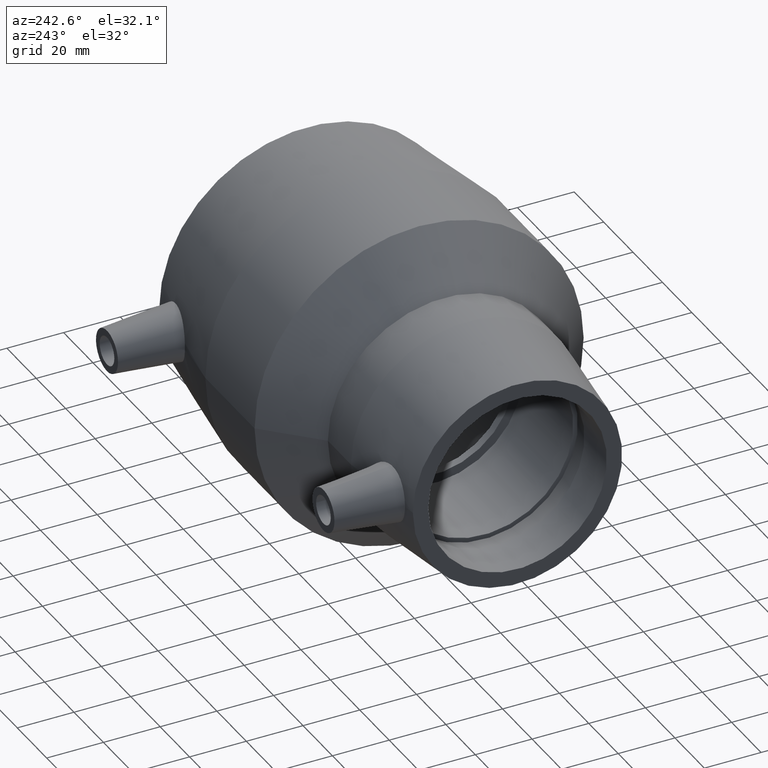
[diagram: clean part render]
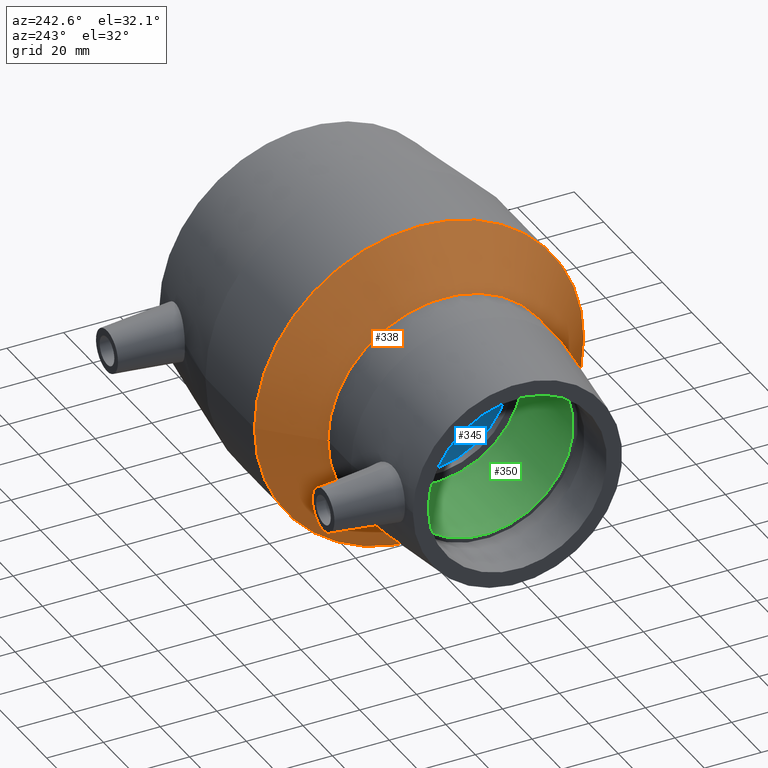
[diagram: same view with three faces highlighted in distinct colors, each labeled with its STEP entity id]
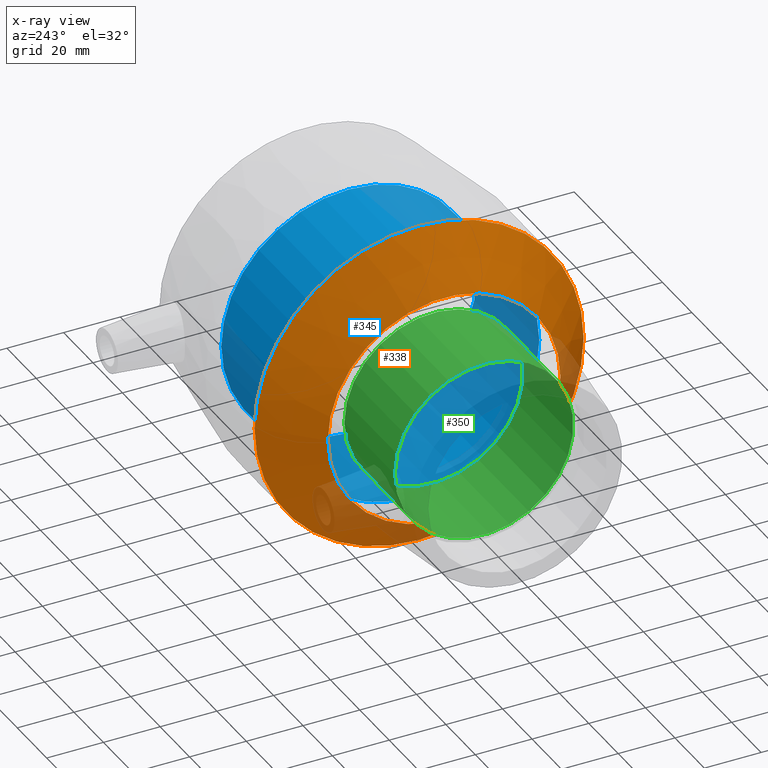
[diagram: x-ray of the same camera — body ghosted, the three highlighted faces saturated]
A machine part, auxiliary view with three faces highlighted in distinct colors.
The next image is the same camera in x-ray (body ghosted, the three faces saturated) — at least one of them is partly hidden behind the body in this view.
Their STEP definitions:

[orange] entity #338 — the highlighted conical surface has half-angle 45 deg.
#19=CONICAL_SURFACE('',#383,49.5,45.);
#36=FACE_BOUND('',#123,.T.);
#80=FACE_OUTER_BOUND('',#122,.T.);
#122=EDGE_LOOP('',(#275));
#123=EDGE_LOOP('',(#276));
#170=CIRCLE('',#381,41.);
#172=CIRCLE('',#384,58.);
#201=VERTEX_POINT('',#644);
#203=VERTEX_POINT('',#649);
#232=EDGE_CURVE('',#201,#201,#170,.T.);
#234=EDGE_CURVE('',#203,#203,#172,.T.);
#275=ORIENTED_EDGE('',*,*,#234,.F.);
#276=ORIENTED_EDGE('',*,*,#232,.T.);
#338=ADVANCED_FACE('',(#80,#36),#19,.T.);
#381=AXIS2_PLACEMENT_3D('',#645,#466,#467);
#383=AXIS2_PLACEMENT_3D('',#648,#470,#471);
#384=AXIS2_PLACEMENT_3D('',#650,#472,#473);
#466=DIRECTION('center_axis',(1.,1.83697019872103E-16,0.));
#467=DIRECTION('ref_axis',(0.,0.,-1.));
#470=DIRECTION('center_axis',(1.,1.83697019872103E-16,0.));
#471=DIRECTION('ref_axis',(-1.72213011695957E-16,1.,0.));
#472=DIRECTION('center_axis',(1.,1.83697019872103E-16,0.));
#473=DIRECTION('ref_axis',(0.,0.,-1.));
#644=CARTESIAN_POINT('',(-21.575,41.,0.));
#645=CARTESIAN_POINT('Origin',(-21.575,9.17107371711474E-15,0.));
#648=CARTESIAN_POINT('Origin',(-13.075,1.07324983860276E-14,0.));
#649=CARTESIAN_POINT('',(-4.57500000000001,58.,0.));
#650=CARTESIAN_POINT('Origin',(-4.575,1.22939230549405E-14,0.));

[blue] entity #345 — the highlighted cylindrical surface (bore or boss wall) has radius 45 mm, axis along (1, 0, 0).
#44=FACE_BOUND('',#138,.T.);
#63=CYLINDRICAL_SURFACE('',#397,45.);
#87=FACE_OUTER_BOUND('',#137,.T.);
#137=EDGE_LOOP('',(#290));
#138=EDGE_LOOP('',(#291));
#178=CIRCLE('',#396,45.);
#179=CIRCLE('',#398,45.);
#209=VERTEX_POINT('',#667);
#210=VERTEX_POINT('',#670);
#240=EDGE_CURVE('',#209,#209,#178,.T.);
#241=EDGE_CURVE('',#210,#210,#179,.T.);
#290=ORIENTED_EDGE('',*,*,#241,.F.);
#291=ORIENTED_EDGE('',*,*,#240,.T.);
#345=ADVANCED_FACE('',(#87,#44),#63,.F.);
#396=AXIS2_PLACEMENT_3D('',#668,#496,#497);
#397=AXIS2_PLACEMENT_3D('',#669,#498,#499);
#398=AXIS2_PLACEMENT_3D('',#671,#500,#501);
#496=DIRECTION('center_axis',(1.,1.83697019872103E-16,0.));
#497=DIRECTION('ref_axis',(0.,0.,-1.));
#498=DIRECTION('center_axis',(1.,1.83697019872103E-16,0.));
#499=DIRECTION('ref_axis',(-1.72213011695957E-16,1.,0.));
#500=DIRECTION('center_axis',(1.,1.83697019872103E-16,0.));
#501=DIRECTION('ref_axis',(0.,0.,-1.));
#667=CARTESIAN_POINT('',(43.1,45.,0.));
#668=CARTESIAN_POINT('Origin',(43.1,2.1051678477343E-14,0.));
#669=CARTESIAN_POINT('Origin',(21.8,1.71389319540672E-14,0.));
#670=CARTESIAN_POINT('',(0.49999999999998,45.,0.));
#671=CARTESIAN_POINT('Origin',(0.499999999999989,1.32261854307914E-14,0.));

[green] entity #350 — the highlighted cylindrical surface (bore or boss wall) has radius 31.5 mm, axis along (1, 0, 0).
#49=FACE_BOUND('',#148,.T.);
#65=CYLINDRICAL_SURFACE('',#407,31.5);
#92=FACE_OUTER_BOUND('',#147,.T.);
#147=EDGE_LOOP('',(#300));
#148=EDGE_LOOP('',(#301));
#183=CIRCLE('',#406,31.5);
#184=CIRCLE('',#408,31.5);
#214=VERTEX_POINT('',#682);
#215=VERTEX_POINT('',#685);
#245=EDGE_CURVE('',#214,#214,#183,.T.);
#246=EDGE_CURVE('',#215,#215,#184,.T.);
#300=ORIENTED_EDGE('',*,*,#246,.F.);
#301=ORIENTED_EDGE('',*,*,#245,.T.);
#350=ADVANCED_FACE('',(#92,#49),#65,.F.);
#406=AXIS2_PLACEMENT_3D('',#683,#516,#517);
#407=AXIS2_PLACEMENT_3D('',#684,#518,#519);
#408=AXIS2_PLACEMENT_3D('',#686,#520,#521);
#516=DIRECTION('center_axis',(1.,1.83697019872103E-16,0.));
#517=DIRECTION('ref_axis',(0.,0.,-1.));
#518=DIRECTION('center_axis',(1.,1.83697019872103E-16,0.));
#519=DIRECTION('ref_axis',(-1.72213011695957E-16,1.,0.));
#520=DIRECTION('center_axis',(1.,1.83697019872103E-16,0.));
#521=DIRECTION('ref_axis',(0.,0.,-1.));
#682=CARTESIAN_POINT('',(-14.5,31.5,0.));
#683=CARTESIAN_POINT('Origin',(-14.5,1.04707301327099E-14,0.));
#684=CARTESIAN_POINT('Origin',(-31.6,7.32951109289691E-15,0.));
#685=CARTESIAN_POINT('',(-48.7,31.5,0.));
#686=CARTESIAN_POINT('Origin',(-48.7,4.18829205308395E-15,0.));